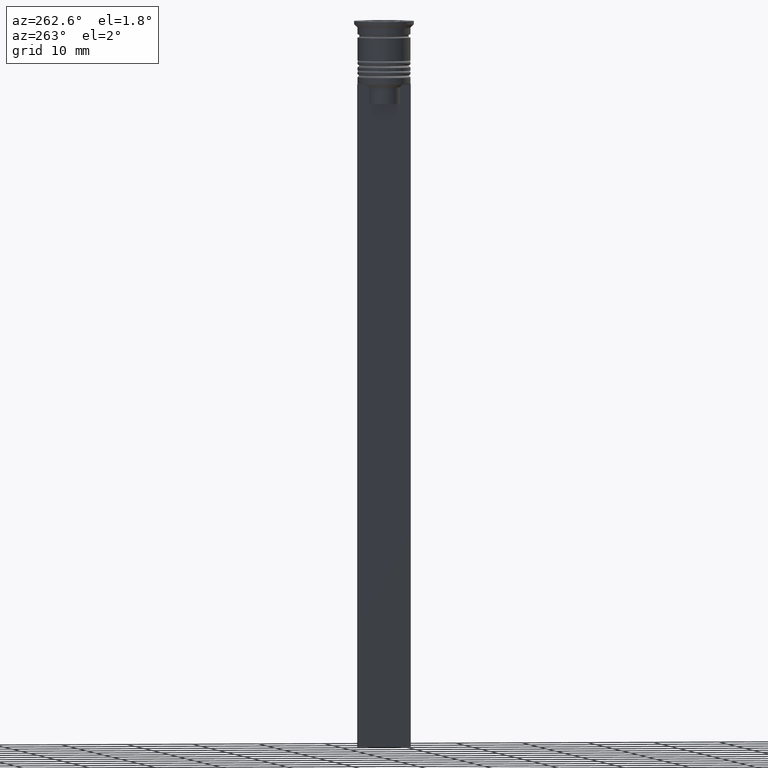
[diagram: clean part render]
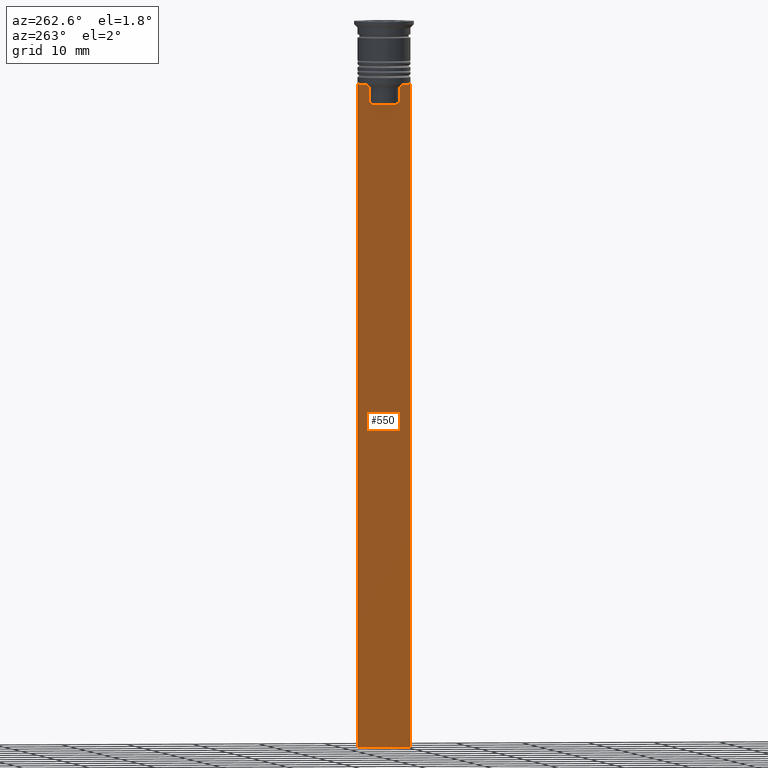
[diagram: same view with one face highlighted and labeled with its STEP entity id]
A machine part, auxiliary view. The second image highlights one B-rep face of the part: STEP entity #550.
In plain terms, the highlighted planar face has unit normal (-1, 0, 0).
Its self-contained STEP definition (entity closure, byte-faithful):
#14 = CARTESIAN_POINT ( 'NONE',  ( -0.5000000000000000000, 2.347338918861097135, 0.000000000000000000 ) ) ;
#15 = VERTEX_POINT ( 'NONE', #2296 ) ;
#22 = EDGE_CURVE ( 'NONE', #15, #1132, #557, .T. ) ;
#62 = VERTEX_POINT ( 'NONE', #1698 ) ;
#67 = EDGE_CURVE ( 'NONE', #1132, #2446, #2276, .T. ) ;
#70 = EDGE_CURVE ( 'NONE', #1010, #1307, #1279, .T. ) ;
#130 = CARTESIAN_POINT ( 'NONE',  ( -0.5000000000000000000, 2.347338918861097135, -12.50000000000000000 ) ) ;
#150 = DIRECTION ( 'NONE',  ( 0.000000000000000000, -1.000000000000000000, 0.000000000000000000 ) ) ;
#180 = DIRECTION ( 'NONE',  ( 0.000000000000000000, 0.000000000000000000, -1.000000000000000000 ) ) ;
#266 = ORIENTED_EDGE ( 'NONE', *, *, #846, .F. ) ;
#288 = B_SPLINE_CURVE_WITH_KNOTS ( 'NONE', 3,
 ( #1800, #2117, #940, #1716 ),
 .UNSPECIFIED., .F., .F.,
 ( 4, 4 ),
 ( 0.01178336557230038641, 0.01249758354768160454 ),
 .UNSPECIFIED. ) ;
#293 = ORIENTED_EDGE ( 'NONE', *, *, #70, .F. ) ;
#299 = EDGE_CURVE ( 'NONE', #2446, #1739, #2184, .T. ) ;
#313 = CARTESIAN_POINT ( 'NONE',  ( -0.5000000000000000000, -3.867815921162741422, -9.500000000000000000 ) ) ;
#319 = DIRECTION ( 'NONE',  ( 0.000000000000000000, 0.000000000000000000, -1.000000000000000000 ) ) ;
#367 = CARTESIAN_POINT ( 'NONE',  ( -0.5000000000000000000, 2.399999999999996803, -12.50000000000000000 ) ) ;
#370 = CARTESIAN_POINT ( 'NONE',  ( -0.5000000000000000000, 4.000000000000000000, -1.437742251701450202 ) ) ;
#422 = FACE_OUTER_BOUND ( 'NONE', #916, .T. ) ;
#428 = CARTESIAN_POINT ( 'NONE',  ( -0.5000000000000000000, -4.000000000000000000, -9.500000000000000000 ) ) ;
#467 = DIRECTION ( 'NONE',  ( 0.000000000000000000, -1.000000000000000000, 0.000000000000000000 ) ) ;
#529 = VECTOR ( 'NONE', #150, 1000.000000000000000 ) ;
#550 = ADVANCED_FACE ( 'NONE', ( #422 ), #2023, .T. ) ;
#557 = LINE ( 'NONE', #14, #1029 ) ;
#558 = VERTEX_POINT ( 'NONE', #1325 ) ;
#571 = EDGE_CURVE ( 'NONE', #1348, #62, #910, .T. ) ;
#576 = DIRECTION ( 'NONE',  ( 0.000000000000000000, 0.000000000000000000, 1.000000000000000000 ) ) ;
#592 = DIRECTION ( 'NONE',  ( 0.000000000000000000, 1.000000000000000000, 0.000000000000000000 ) ) ;
#624 = CARTESIAN_POINT ( 'NONE',  ( -0.5000000000000000000, -2.347338918861097135, 0.000000000000000000 ) ) ;
#656 = EDGE_CURVE ( 'NONE', #1148, #15, #702, .T. ) ;
#671 = EDGE_CURVE ( 'NONE', #1739, #2524, #288, .T. ) ;
#672 = ORIENTED_EDGE ( 'NONE', *, *, #711, .F. ) ;
#685 = ORIENTED_EDGE ( 'NONE', *, *, #1461, .F. ) ;
#702 = B_SPLINE_CURVE_WITH_KNOTS ( 'NONE', 3,
 ( #1271, #2081, #2483, #1652 ),
 .UNSPECIFIED., .F., .F.,
 ( 4, 4 ),
 ( 0.004956812174141195064, 0.005670477137898153989 ),
 .UNSPECIFIED. ) ;
#711 = EDGE_CURVE ( 'NONE', #1348, #558, #911, .T. ) ;
#777 = LINE ( 'NONE', #2352, #1366 ) ;
#846 = EDGE_CURVE ( 'NONE', #2524, #891, #1838, .T. ) ;
#864 = ORIENTED_EDGE ( 'NONE', *, *, #1355, .F. ) ;
#868 = CARTESIAN_POINT ( 'NONE',  ( -0.5000000000000000000, -4.000000000000000000, -9.500000000000000000 ) ) ;
#872 = VECTOR ( 'NONE', #1873, 1000.000000000000000 ) ;
#891 = VERTEX_POINT ( 'NONE', #313 ) ;
#900 = CARTESIAN_POINT ( 'NONE',  ( -0.5000000000000000000, -4.000000000000000000, -9.500000000000000000 ) ) ;
#910 = LINE ( 'NONE', #370, #1850 ) ;
#911 = LINE ( 'NONE', #1886, #2496 ) ;
#913 = CARTESIAN_POINT ( 'NONE',  ( -0.5000000000000000000, -2.856571371417138572, -9.500000000000000000 ) ) ;
#916 = EDGE_LOOP ( 'NONE', ( #1711, #864, #672, #951, #685, #293, #1830, #266, #2232, #1017, #1386, #2033 ) ) ;
#940 = CARTESIAN_POINT ( 'NONE',  ( -0.5000000000000000000, -2.687095498514037839, -9.666937905752043037 ) ) ;
#951 = ORIENTED_EDGE ( 'NONE', *, *, #571, .T. ) ;
#1010 = VERTEX_POINT ( 'NONE', #1951 ) ;
#1017 = ORIENTED_EDGE ( 'NONE', *, *, #299, .F. ) ;
#1029 = VECTOR ( 'NONE', #1511, 1000.000000000000000 ) ;
#1068 = VECTOR ( 'NONE', #1760, 1000.000000000000000 ) ;
#1124 = CARTESIAN_POINT ( 'NONE',  ( -0.5000000000000000000, -2.347338918861097135, -10.00000000000000000 ) ) ;
#1130 = CARTESIAN_POINT ( 'NONE',  ( -0.5000000000000000000, -4.000000000000000000, -1.437742251701450202 ) ) ;
#1132 = VERTEX_POINT ( 'NONE', #130 ) ;
#1148 = VERTEX_POINT ( 'NONE', #1558 ) ;
#1186 = DIRECTION ( 'NONE',  ( 0.000000000000000000, -1.000000000000000000, 0.000000000000000000 ) ) ;
#1194 = VECTOR ( 'NONE', #467, 1000.000000000000000 ) ;
#1271 = CARTESIAN_POINT ( 'NONE',  ( -0.5000000000000000000, 2.856571371417138572, -9.500000000000000000 ) ) ;
#1279 = LINE ( 'NONE', #1130, #1683 ) ;
#1307 = VERTEX_POINT ( 'NONE', #1681 ) ;
#1325 = CARTESIAN_POINT ( 'NONE',  ( -0.5000000000000000000, 3.867815921162741422, -9.500000000000000000 ) ) ;
#1348 = VERTEX_POINT ( 'NONE', #1880 ) ;
#1355 = EDGE_CURVE ( 'NONE', #558, #1148, #2101, .T. ) ;
#1366 = VECTOR ( 'NONE', #592, 1000.000000000000000 ) ;
#1380 = LINE ( 'NONE', #428, #1441 ) ;
#1386 = ORIENTED_EDGE ( 'NONE', *, *, #67, .F. ) ;
#1441 = VECTOR ( 'NONE', #1186, 1000.000000000000000 ) ;
#1461 = EDGE_CURVE ( 'NONE', #1307, #62, #777, .T. ) ;
#1491 = DIRECTION ( 'NONE',  ( -1.000000000000000000, 0.000000000000000000, 0.000000000000000000 ) ) ;
#1511 = DIRECTION ( 'NONE',  ( 0.000000000000000000, 0.000000000000000000, -1.000000000000000000 ) ) ;
#1558 = CARTESIAN_POINT ( 'NONE',  ( -0.5000000000000000000, 2.856571371417138572, -9.500000000000000000 ) ) ;
#1652 = CARTESIAN_POINT ( 'NONE',  ( -0.5000000000000000000, 2.347338918861097135, -10.00000000000000000 ) ) ;
#1681 = CARTESIAN_POINT ( 'NONE',  ( -0.5000000000000000000, -4.000000000000000000, -109.5000000000000000 ) ) ;
#1682 = DIRECTION ( 'NONE',  ( 0.000000000000000000, -1.000000000000000000, 0.000000000000000000 ) ) ;
#1683 = VECTOR ( 'NONE', #180, 1000.000000000000000 ) ;
#1698 = CARTESIAN_POINT ( 'NONE',  ( -0.5000000000000000000, 4.000000000000000000, -109.5000000000000000 ) ) ;
#1711 = ORIENTED_EDGE ( 'NONE', *, *, #656, .F. ) ;
#1716 = CARTESIAN_POINT ( 'NONE',  ( -0.5000000000000000000, -2.856571371417138572, -9.500000000000000000 ) ) ;
#1739 = VERTEX_POINT ( 'NONE', #1124 ) ;
#1760 = DIRECTION ( 'NONE',  ( -0.000000000000000000, -0.000000000000000000, 1.000000000000000000 ) ) ;
#1800 = CARTESIAN_POINT ( 'NONE',  ( -0.5000000000000000000, -2.347338918861097135, -10.00000000000000000 ) ) ;
#1829 = CARTESIAN_POINT ( 'NONE',  ( -0.5000000000000000000, -4.000000000000000000, -1.437742251701450202 ) ) ;
#1830 = ORIENTED_EDGE ( 'NONE', *, *, #2381, .F. ) ;
#1838 = LINE ( 'NONE', #868, #1194 ) ;
#1850 = VECTOR ( 'NONE', #319, 1000.000000000000000 ) ;
#1873 = DIRECTION ( 'NONE',  ( 0.000000000000000000, -1.000000000000000000, 0.000000000000000000 ) ) ;
#1880 = CARTESIAN_POINT ( 'NONE',  ( -0.5000000000000000000, 4.000000000000000000, -9.500000000000000000 ) ) ;
#1886 = CARTESIAN_POINT ( 'NONE',  ( -0.5000000000000000000, -4.000000000000000000, -9.500000000000000000 ) ) ;
#1951 = CARTESIAN_POINT ( 'NONE',  ( -0.5000000000000000000, -4.000000000000000000, -9.500000000000000000 ) ) ;
#2023 = PLANE ( 'NONE',  #2325 ) ;
#2033 = ORIENTED_EDGE ( 'NONE', *, *, #22, .F. ) ;
#2081 = CARTESIAN_POINT ( 'NONE',  ( -0.5000000000000000000, 2.687094542495897631, -9.666938847453439010 ) ) ;
#2101 = LINE ( 'NONE', #900, #529 ) ;
#2117 = CARTESIAN_POINT ( 'NONE',  ( -0.5000000000000000000, -2.517408374291112416, -9.833662228483172285 ) ) ;
#2184 = LINE ( 'NONE', #624, #1068 ) ;
#2232 = ORIENTED_EDGE ( 'NONE', *, *, #671, .F. ) ;
#2276 = LINE ( 'NONE', #367, #872 ) ;
#2296 = CARTESIAN_POINT ( 'NONE',  ( -0.5000000000000000000, 2.347338918861097135, -10.00000000000000000 ) ) ;
#2325 = AXIS2_PLACEMENT_3D ( 'NONE', #1829, #1491, #576 ) ;
#2352 = CARTESIAN_POINT ( 'NONE',  ( -0.5000000000000000000, -4.000000000000000000, -109.5000000000000000 ) ) ;
#2381 = EDGE_CURVE ( 'NONE', #891, #1010, #1380, .T. ) ;
#2414 = CARTESIAN_POINT ( 'NONE',  ( -0.5000000000000000000, -2.347338918861097135, -12.50000000000000000 ) ) ;
#2446 = VERTEX_POINT ( 'NONE', #2414 ) ;
#2483 = CARTESIAN_POINT ( 'NONE',  ( -0.5000000000000000000, 2.517407211010871393, -9.833663366238582171 ) ) ;
#2496 = VECTOR ( 'NONE', #1682, 1000.000000000000000 ) ;
#2524 = VERTEX_POINT ( 'NONE', #913 ) ;